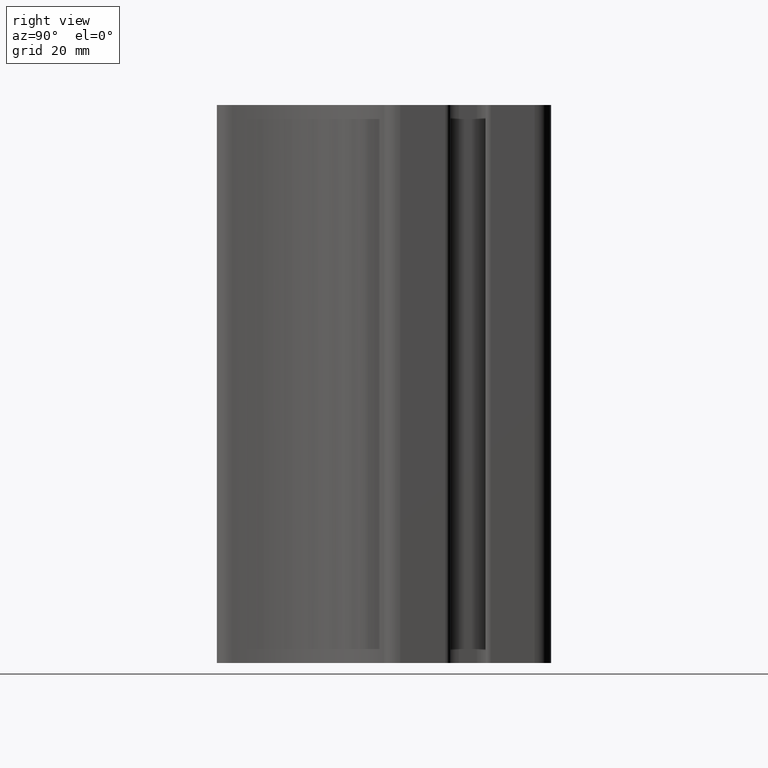
[diagram: clean part render]
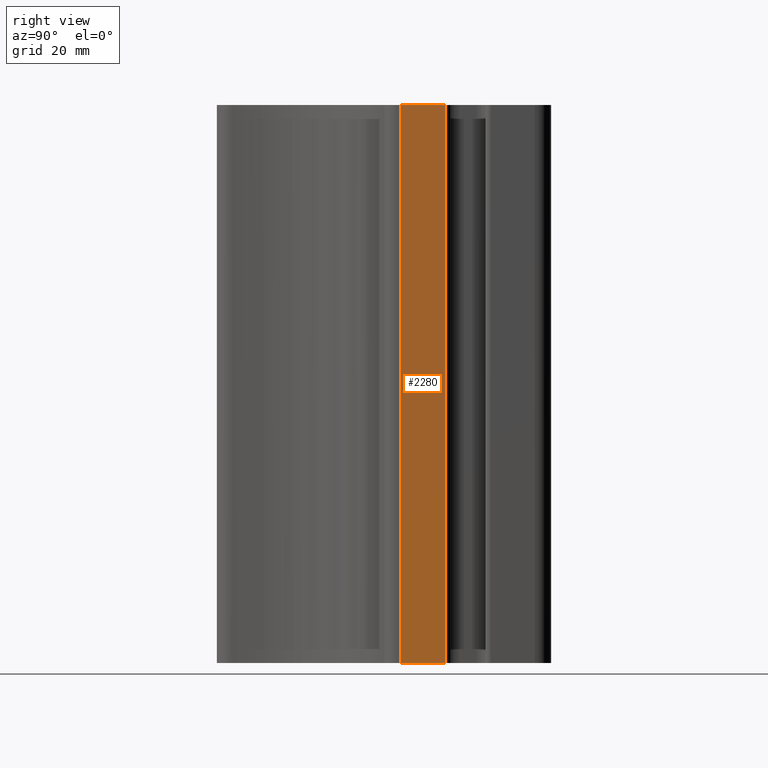
[diagram: same view with one face highlighted and labeled with its STEP entity id]
A machine part, right view. The second image highlights one B-rep face of the part: STEP entity #2280.
In plain terms, the highlighted planar face has unit normal (1, 0, 0).
Its self-contained STEP definition (entity closure, byte-faithful):
#342=FACE_OUTER_BOUND('',#463,.T.);
#463=EDGE_LOOP('',(#1772,#1773,#1774,#1775));
#632=LINE('',#3794,#821);
#633=LINE('',#3796,#822);
#634=LINE('',#3798,#823);
#635=LINE('',#3799,#824);
#821=VECTOR('',#3091,8.03672663801841);
#822=VECTOR('',#3092,100.);
#823=VECTOR('',#3093,8.03672663801841);
#824=VECTOR('',#3094,100.);
#1049=VERTEX_POINT('',#3792);
#1050=VERTEX_POINT('',#3793);
#1051=VERTEX_POINT('',#3795);
#1052=VERTEX_POINT('',#3797);
#1354=EDGE_CURVE('',#1049,#1050,#632,.T.);
#1355=EDGE_CURVE('',#1050,#1051,#633,.T.);
#1356=EDGE_CURVE('',#1052,#1051,#634,.T.);
#1357=EDGE_CURVE('',#1049,#1052,#635,.T.);
#1772=ORIENTED_EDGE('',*,*,#1354,.T.);
#1773=ORIENTED_EDGE('',*,*,#1355,.T.);
#1774=ORIENTED_EDGE('',*,*,#1356,.F.);
#1775=ORIENTED_EDGE('',*,*,#1357,.F.);
#2184=PLANE('',#2512);
#2280=ADVANCED_FACE('',(#342),#2184,.T.);
#2512=AXIS2_PLACEMENT_3D('',#3791,#3089,#3090);
#3089=DIRECTION('center_axis',(1.,1.54720926017059E-14,0.));
#3090=DIRECTION('ref_axis',(-1.56319401867222E-14,1.,0.));
#3091=DIRECTION('',(-1.54720926017059E-14,1.,0.));
#3092=DIRECTION('',(0.,0.,1.));
#3093=DIRECTION('',(-1.54720926017059E-14,1.,0.));
#3094=DIRECTION('',(0.,0.,1.));
#3791=CARTESIAN_POINT('Origin',(31.8188746287481,1.04355898483959,0.));
#3792=CARTESIAN_POINT('',(31.8188746287481,1.04355898483959,0.));
#3793=CARTESIAN_POINT('',(31.818874628748,9.08028562285801,0.));
#3794=CARTESIAN_POINT('',(31.8188746287481,1.04355898483959,0.));
#3795=CARTESIAN_POINT('',(31.818874628748,9.08028562285801,100.));
#3796=CARTESIAN_POINT('',(31.818874628748,9.08028562285801,0.));
#3797=CARTESIAN_POINT('',(31.8188746287481,1.04355898483959,100.));
#3798=CARTESIAN_POINT('',(31.8188746287481,1.04355898483959,100.));
#3799=CARTESIAN_POINT('',(31.8188746287481,1.04355898483959,0.));